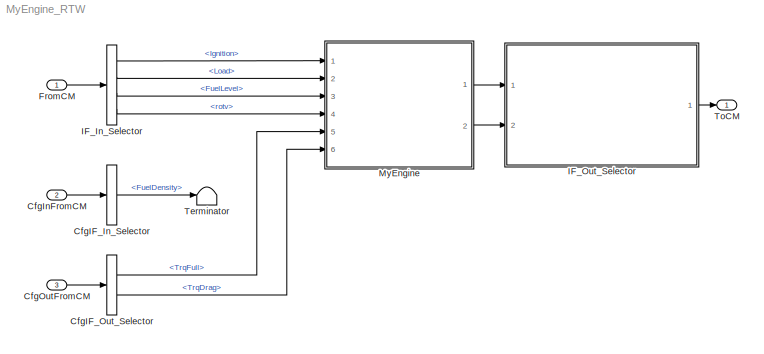
MODEL MyEngine_RTW
KIND model
CONFIG InitFcn = vehicle = 'Car'; if ~length(which('cmcmd')), cmenv; end\nMyEngine_RTW_bus
CONFIG PreLoadFcn = vehicle = 'Car'; if ~length(which('cmcmd')), cmenv; end\nMyEngine_RTW_bus
BLOCK [BusSelector] CfgIF_In_Selector
  OutputAsBus = off
  OutputSignals = FuelDensity
  Ports = [1, 1]
  SID = 9
BLOCK [BusSelector] CfgIF_Out_Selector
  OutputAsBus = off
  OutputSignals = TrqFull,TrqDrag
  Ports = [1, 2]
  SID = 12
BLOCK [Inport] CfgInFromCM
  IconDisplay = Port number
  OutDataTypeStr = Bus: cmPTEngineCfgIn
  Port = 2
  SID = 8
BLOCK [Inport] CfgOutFromCM
  IconDisplay = Port number
  OutDataTypeStr = Bus: cmPTEngineCfgOut
  Port = 3
  SID = 11
BLOCK [Inport] FromCM
  IconDisplay = Port number
  OutDataTypeStr = Bus: cmPTEngineIn
  SID = 1
BLOCK [BusSelector] IF_In_Selector
  OutputAsBus = off
  OutputSignals = Ignition,Load,FuelLevel,rotv
  Ports = [1, 4]
  SID = 2
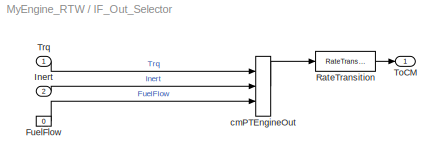
BLOCK [SubSystem] IF_Out_Selector
  OpenFcn = cmSignalSelect('SignalSelection_CB',gcb)
  Ports = [2, 1]
  RequestExecContextInheritance = off
  SID = 5
  UserData = DataTag0
  UserDataPersistent = on
BLOCK [Constant] IF_Out_Selector/FuelFlow
  SID = 17
  Value = 0
BLOCK [Inport] IF_Out_Selector/Inert
  IconDisplay = Port number
  Port = 2
  SID = 66
BLOCK [RateTransition] IF_Out_Selector/RateTransition
  OutPortSampleTime = str2num(get_param(bdroot,'FixedStep'))
  SID = 6
BLOCK [Outport] IF_Out_Selector/ToCM
  IconDisplay = Port number
  SID = 7
BLOCK [Inport] IF_Out_Selector/Trq
  IconDisplay = Port number
  SID = 65
BLOCK [BusCreator] IF_Out_Selector/cmPTEngineOut
  InheritFromInputs = on
  Inputs = 3
  Ports = [3, 1]
  SID = 14
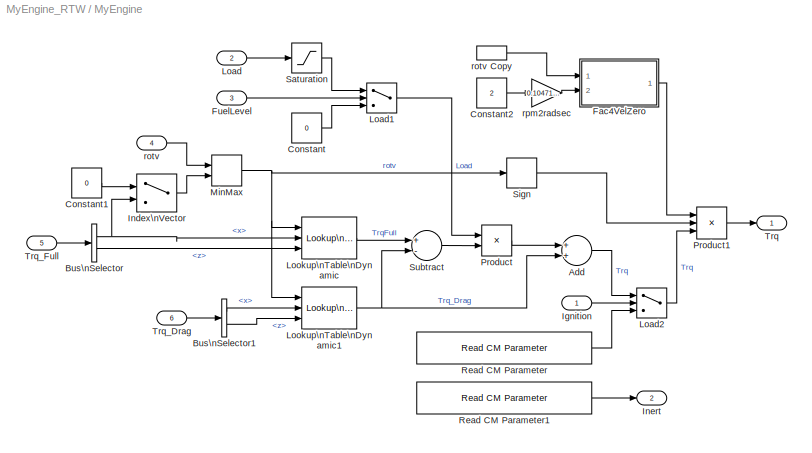
BLOCK [SubSystem] MyEngine
  Ports = [6, 2]
  RequestExecContextInheritance = off
  SID = 18
BLOCK [Sum] MyEngine/Add
  InputSameDT = off
  OutDataTypeStr = Inherit: Inherit via internal rule
  Ports = [2, 1]
  SID = 25
  SaturateOnIntegerOverflow = off
BLOCK [BusSelector] MyEngine/Bus\nSelector
  OutputAsBus = off
  OutputSignals = x,z
  Ports = [1, 2]
  SID = 26
BLOCK [BusSelector] MyEngine/Bus\nSelector1
  OutputAsBus = off
  OutputSignals = x,z
  Ports = [1, 2]
  SID = 27
BLOCK [Constant] MyEngine/Constant
  SID = 28
  Value = 0
BLOCK [Constant] MyEngine/Constant1
  SID = 29
  Value = 0
BLOCK [Constant] MyEngine/Constant2
  SID = 30
  Value = 2
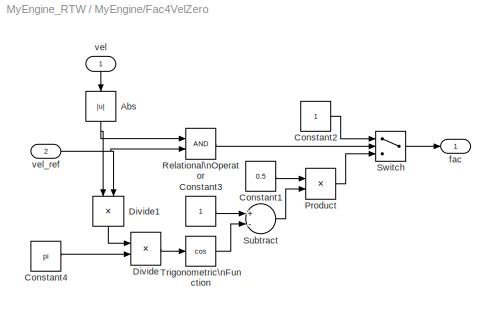
BLOCK [SubSystem] MyEngine/Fac4VelZero
  Ports = [2, 1]
  RequestExecContextInheritance = off
  SID = 31
BLOCK [Abs] MyEngine/Fac4VelZero/Abs
  SID = 34
  SaturateOnIntegerOverflow = off
BLOCK [Constant] MyEngine/Fac4VelZero/Constant1
  SID = 35
  Value = 0.5
BLOCK [Constant] MyEngine/Fac4VelZero/Constant2
  SID = 36
BLOCK [Constant] MyEngine/Fac4VelZero/Constant3
  SID = 37
BLOCK [Constant] MyEngine/Fac4VelZero/Constant4
  SID = 38
  Value = pi
BLOCK [Product] MyEngine/Fac4VelZero/Divide
  InputSameDT = off
  Inputs = **
  OutDataTypeStr = Inherit: Inherit via internal rule
  Ports = [2, 1]
  RndMeth = Floor
  SID = 39
  SaturateOnIntegerOverflow = off
BLOCK [Product] MyEngine/Fac4VelZero/Divide1
  InputSameDT = off
  Inputs = */
  OutDataTypeStr = Inherit: Inherit via internal rule
  Ports = [2, 1]
  RndMeth = Floor
  SID = 40
  SaturateOnIntegerOverflow = off
BLOCK [Product] MyEngine/Fac4VelZero/Product
  InputSameDT = off
  OutDataTypeStr = Inherit: Inherit via internal rule
  Ports = [2, 1]
  SID = 41
  SaturateOnIntegerOverflow = off
BLOCK [RelationalOperator] MyEngine/Fac4VelZero/Relational\nOperator
  InputSameDT = off
  OutDataTypeStr = boolean
  Ports = [2, 1]
  SID = 42
BLOCK [Sum] MyEngine/Fac4VelZero/Subtract
  InputSameDT = off
  Inputs = +-
  OutDataTypeStr = Inherit: Inherit via internal rule
  Ports = [2, 1]
  SID = 43
  SaturateOnIntegerOverflow = off
BLOCK [Switch] MyEngine/Fac4VelZero/Switch
  Criteria = u2 ~= 0
  InputSameDT = off
  SID = 44
  SaturateOnIntegerOverflow = off
BLOCK [Trigonometry] MyEngine/Fac4VelZero/Trigonometric\nFunction
  Operator = cos
  Ports = [1, 1]
  SID = 45
BLOCK [Outport] MyEngine/Fac4VelZero/fac
  IconDisplay = Port number
  SID = 46
BLOCK [Inport] MyEngine/Fac4VelZero/vel
  IconDisplay = Port number
  SID = 32
BLOCK [Inport] MyEngine/Fac4VelZero/vel_ref
  IconDisplay = Port number
  Port = 2
  SID = 33
BLOCK [Inport] MyEngine/FuelLevel
  IconDisplay = Port number
  Port = 3
  SID = 21
BLOCK [Inport] MyEngine/Ignition
  IconDisplay = Port number
  SID = 19
BLOCK [MultiPortSwitch] MyEngine/Index\nVector
  DataPortOrder = Zero-based contiguous
  InputSameDT = off
  Inputs = 1
  Ports = [2, 1]
  SID = 47
  SaturateOnIntegerOverflow = off
  zeroidx = on
BLOCK [Outport] MyEngine/Inert
  IconDisplay = Port number
  Port = 2
  SID = 63
BLOCK [Inport] MyEngine/Load
  IconDisplay = Port number
  Port = 2
  SID = 20
BLOCK [Switch] MyEngine/Load1
  Criteria = u2 ~= 0
  InputSameDT = off
  SID = 48
  SaturateOnIntegerOverflow = off
BLOCK [Switch] MyEngine/Load2
  Criteria = u2 ~= 0
  InputSameDT = off
  SID = 49
  SaturateOnIntegerOverflow = off
BLOCK [Reference] MyEngine/Lookup\nTable\nDynamic  REF=simulink/Lookup\nTables/Lookup\nTable\nDynamic
  DoSatur = off
  LockScale = off
  LookUpMeth = Interpolation-Use End Values
  OutDataType = float('double')
  OutDataTypeStr = float('double')
  OutScaling = 2^-10
  OutputDataTypeScalingMode = Specify via dialog
  Ports = [3, 1]
  RndMeth = Floor
  SID = 50
  SourceBlock = simulink/Lookup\nTables/Lookup\nTable\nDynamic
  SourceProductBaseCode = SL
  SourceProductName = Simulink
  SourceType = Lookup Table Dynamic
BLOCK [Reference] MyEngine/Lookup\nTable\nDynamic1  REF=simulink/Lookup\nTables/Lookup\nTable\nDynamic
  DoSatur = off
  LockScale = off
  LookUpMeth = Interpolation-Use End Values
  OutDataType = float('double')
  OutDataTypeStr = float('double')
  OutScaling = 2^-10
  OutputDataTypeScalingMode = Specify via dialog
  Ports = [3, 1]
  RndMeth = Floor
  SID = 51
  SourceBlock = simulink/Lookup\nTables/Lookup\nTable\nDynamic
  SourceProductBaseCode = SL
  SourceProductName = Simulink
  SourceType = Lookup Table Dynamic
BLOCK [MinMax] MyEngine/MinMax
  Function = max
  InputSameDT = off
  Inputs = 2
  Ports = [2, 1]
  SID = 52
  SaturateOnIntegerOverflow = off
BLOCK [Product] MyEngine/Product
  InputSameDT = off
  OutDataTypeStr = Inherit: Inherit via internal rule
  Ports = [2, 1]
  SID = 53
  SaturateOnIntegerOverflow = off
BLOCK [Product] MyEngine/Product1
  InputSameDT = off
  Inputs = 3
  OutDataTypeStr = Inherit: Inherit via internal rule
  Ports = [3, 1]
  SID = 54
  SaturateOnIntegerOverflow = off
BLOCK [Reference] MyEngine/Read CM Parameter  REF=CarMaker4SL/Read CM Parameter
  Ports = [0, 1]
  SID = 55
  SourceBlock = CarMaker4SL/Read CM Parameter
  SourceProductName = CarMaker4SL
  SourceType = Read CarMaker Infofile Parameter
  xdefaults = []
  xfile = Vehicle
  xkey = PowerTrain.MyEngine.TrqKl15Off
  xmuxed = on
  xnout = 1
BLOCK [Reference] MyEngine/Read CM Parameter1  REF=CarMaker4SL/Read CM Parameter
  Ports = [0, 1]
  SID = 56
  SourceBlock = CarMaker4SL/Read CM Parameter
  SourceProductName = CarMaker4SL
  SourceType = Read CarMaker Infofile Parameter
  xdefaults = 0.1
  xfile = Vehicle
  xkey = PowerTrain.Engine.I
  xmuxed = on
  xnout = 1
BLOCK [Saturate] MyEngine/Saturation
  InputPortMap = u0
  LowerLimit = 0
  Ports = [1, 1]
  SID = 57
  UpperLimit = 1
BLOCK [Signum] MyEngine/Sign
  SID = 58
BLOCK [Sum] MyEngine/Subtract
  InputSameDT = off
  Inputs = +-
  OutDataTypeStr = Inherit: Inherit via internal rule
  Ports = [2, 1]
  SID = 59
  SaturateOnIntegerOverflow = off
BLOCK [Outport] MyEngine/Trq
  IconDisplay = Port number
  SID = 62
BLOCK [Inport] MyEngine/Trq_Drag
  IconDisplay = Port number
  Port = 6
  SID = 24
BLOCK [Inport] MyEngine/Trq_Full
  IconDisplay = Port number
  Port = 5
  SID = 23
BLOCK [Inport] MyEngine/rotv
  IconDisplay = Port number
  Port = 4
  SID = 22
BLOCK [InportShadow] MyEngine/rotv Copy
  IconDisplay = Port number
  Port = 4
  SID = 60
BLOCK [Gain] MyEngine/rpm2radsec
  Gain = 0.104719755
  OutDataTypeStr = Inherit: Inherit via internal rule
  ParamDataTypeStr = Inherit: Inherit via internal rule
  SID = 61
  SaturateOnIntegerOverflow = off
BLOCK [Terminator] Terminator
  SID = 64
BLOCK [Outport] ToCM
  IconDisplay = Port number
  OutDataTypeStr = Bus: cmPTEngineOut
  SID = 4
LINE CfgIF_In_Selector:1 -> Terminator:1
LINE CfgIF_Out_Selector:1 -> MyEngine:5
LINE CfgIF_Out_Selector:2 -> MyEngine:6
LINE CfgInFromCM:1 -> CfgIF_In_Selector:1
LINE CfgOutFromCM:1 -> CfgIF_Out_Selector:1
LINE FromCM:1 -> IF_In_Selector:1
LINE IF_In_Selector:1 -> MyEngine:1
LINE IF_In_Selector:2 -> MyEngine:2
LINE IF_In_Selector:3 -> MyEngine:3
LINE IF_In_Selector:4 -> MyEngine:4
LINE IF_Out_Selector/FuelFlow:1 -> IF_Out_Selector/cmPTEngineOut:3
LINE IF_Out_Selector/Inert:1 -> IF_Out_Selector/cmPTEngineOut:2
LINE IF_Out_Selector/RateTransition:1 -> IF_Out_Selector/ToCM:1
LINE IF_Out_Selector/Trq:1 -> IF_Out_Selector/cmPTEngineOut:1
LINE IF_Out_Selector/cmPTEngineOut:1 -> IF_Out_Selector/RateTransition:1
LINE IF_Out_Selector:1 -> ToCM:1
LINE MyEngine/Add:1 -> MyEngine/Load2:1
LINE MyEngine/Bus\nSelector1:1 -> MyEngine/Lookup\nTable\nDynamic1:2
LINE MyEngine/Bus\nSelector1:2 -> MyEngine/Lookup\nTable\nDynamic1:3
NET MyEngine/Bus\nSelector:1 -> MyEngine/Index\nVector:2, MyEngine/Lookup\nTable\nDynamic:2
LINE MyEngine/Bus\nSelector:2 -> MyEngine/Lookup\nTable\nDynamic:3
LINE MyEngine/Constant1:1 -> MyEngine/Index\nVector:1
LINE MyEngine/Constant2:1 -> MyEngine/rpm2radsec:1
LINE MyEngine/Constant:1 -> MyEngine/Load1:3
NET MyEngine/Fac4VelZero/Abs:1 -> MyEngine/Fac4VelZero/Divide1:1, MyEngine/Fac4VelZero/Relational\nOperator:1
LINE MyEngine/Fac4VelZero/Constant1:1 -> MyEngine/Fac4VelZero/Product:1
LINE MyEngine/Fac4VelZero/Constant2:1 -> MyEngine/Fac4VelZero/Switch:1
LINE MyEngine/Fac4VelZero/Constant3:1 -> MyEngine/Fac4VelZero/Subtract:1
LINE MyEngine/Fac4VelZero/Constant4:1 -> MyEngine/Fac4VelZero/Divide:2
LINE MyEngine/Fac4VelZero/Divide1:1 -> MyEngine/Fac4VelZero/Divide:1
LINE MyEngine/Fac4VelZero/Divide:1 -> MyEngine/Fac4VelZero/Trigonometric\nFunction:1
LINE MyEngine/Fac4VelZero/Product:1 -> MyEngine/Fac4VelZero/Switch:3
LINE MyEngine/Fac4VelZero/Relational\nOperator:1 -> MyEngine/Fac4VelZero/Switch:2
LINE MyEngine/Fac4VelZero/Subtract:1 -> MyEngine/Fac4VelZero/Product:2
LINE MyEngine/Fac4VelZero/Switch:1 -> MyEngine/Fac4VelZero/fac:1
LINE MyEngine/Fac4VelZero/Trigonometric\nFunction:1 -> MyEngine/Fac4VelZero/Subtract:2
LINE MyEngine/Fac4VelZero/vel:1 -> MyEngine/Fac4VelZero/Abs:1
NET MyEngine/Fac4VelZero/vel_ref:1 -> MyEngine/Fac4VelZero/Divide1:2, MyEngine/Fac4VelZero/Relational\nOperator:2
LINE MyEngine/Fac4VelZero:1 -> MyEngine/Product1:1
LINE MyEngine/FuelLevel:1 -> MyEngine/Load1:2
LINE MyEngine/Ignition:1 -> MyEngine/Load2:2
LINE MyEngine/Index\nVector:1 -> MyEngine/MinMax:2
LINE MyEngine/Load1:1 -> MyEngine/Product:1
LINE MyEngine/Load2:1 -> MyEngine/Product1:3
LINE MyEngine/Load:1 -> MyEngine/Saturation:1
NET MyEngine/Lookup\nTable\nDynamic1:1 -> MyEngine/Add:2, MyEngine/Subtract:2
LINE MyEngine/Lookup\nTable\nDynamic:1 -> MyEngine/Subtract:1
NET MyEngine/MinMax:1 -> MyEngine/Lookup\nTable\nDynamic1:1, MyEngine/Lookup\nTable\nDynamic:1, MyEngine/Sign:1
LINE MyEngine/Product1:1 -> MyEngine/Trq:1
LINE MyEngine/Product:1 -> MyEngine/Add:1
LINE MyEngine/Read CM Parameter1:1 -> MyEngine/Inert:1
LINE MyEngine/Read CM Parameter:1 -> MyEngine/Load2:3
LINE MyEngine/Saturation:1 -> MyEngine/Load1:1
LINE MyEngine/Sign:1 -> MyEngine/Product1:2
LINE MyEngine/Subtract:1 -> MyEngine/Product:2
LINE MyEngine/Trq_Drag:1 -> MyEngine/Bus\nSelector1:1
LINE MyEngine/Trq_Full:1 -> MyEngine/Bus\nSelector:1
LINE MyEngine/rotv Copy:1 -> MyEngine/Fac4VelZero:1
LINE MyEngine/rotv:1 -> MyEngine/MinMax:1
LINE MyEngine/rpm2radsec:1 -> MyEngine/Fac4VelZero:2
LINE MyEngine:1 -> IF_Out_Selector:1
LINE MyEngine:2 -> IF_Out_Selector:2
note: NET lines group one-source signal fan-out (src -> all destinations, sorted); 1:1 wires keep LINE
